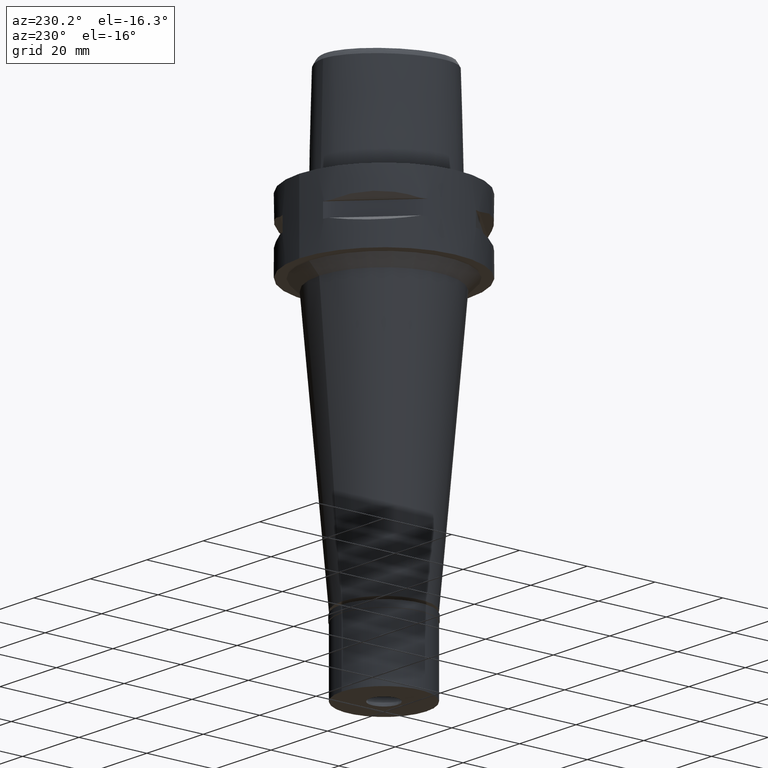
[diagram: clean part render]
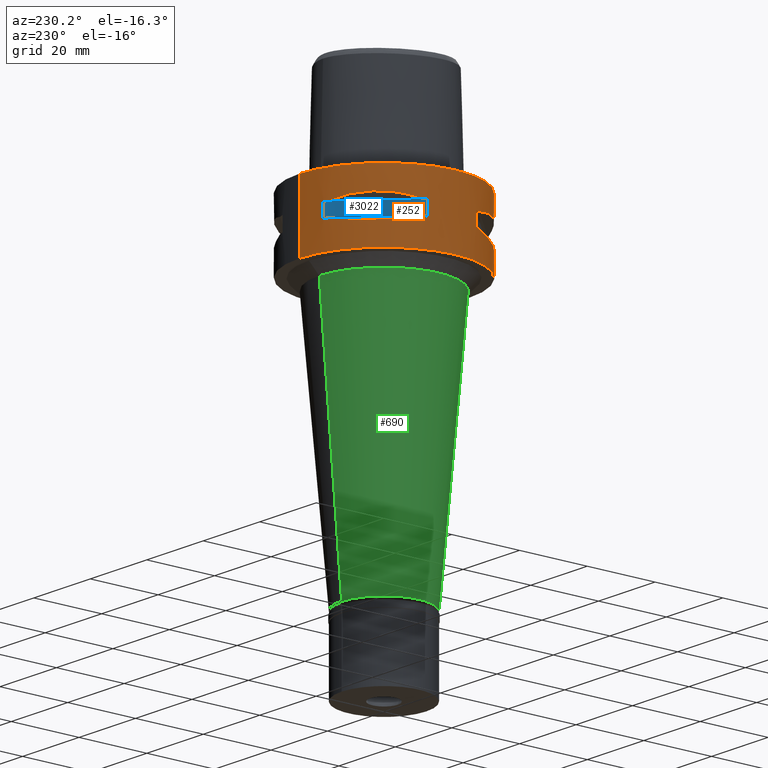
[diagram: same view with three faces highlighted in distinct colors, each labeled with its STEP entity id]
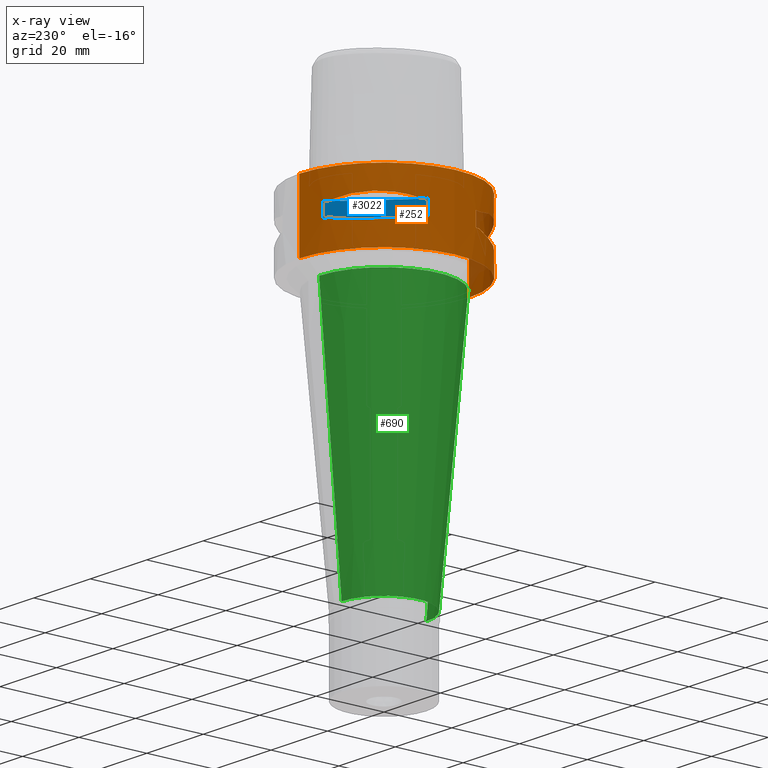
[diagram: x-ray of the same camera — body ghosted, the three highlighted faces saturated]
A machine part, auxiliary view with three faces highlighted in distinct colors.
The next image is the same camera in x-ray (body ghosted, the three faces saturated) — at least one of them is partly hidden behind the body in this view.
Their STEP definitions:

[orange] entity #252 — the highlighted cylindrical surface (partial cylindrical patch) has radius 25 mm, axis along (0, 0, -1).
#14 = DIRECTION ( 'NONE',  ( 0.0000000000000000000, 0.0000000000000000000, 1.000000000000000000 ) ) ;
#27 = CARTESIAN_POINT ( 'NONE',  ( -21.09754014382098930, -13.41274673326371136, -13.03250796600744721 ) ) ;
#65 = VECTOR ( 'NONE', #2749, 1000.000000000000000 ) ;
#69 = CARTESIAN_POINT ( 'NONE',  ( -20.92801700160071476, 13.67544437571354266, -13.07054629644097687 ) ) ;
#116 = AXIS2_PLACEMENT_3D ( 'NONE', #4035, #620, #1041 ) ;
#168 = EDGE_CURVE ( 'NONE', #1367, #3242, #1027, .T. ) ;
#212 = EDGE_CURVE ( 'NONE', #668, #3242, #2875, .T. ) ;
#216 = LINE ( 'NONE', #1324, #4386 ) ;
#226 = AXIS2_PLACEMENT_3D ( 'NONE', #469, #4298, #1666 ) ;
#229 = DIRECTION ( 'NONE',  ( 0.0000000000000000000, 0.0000000000000000000, -1.000000000000000000 ) ) ;
#249 = VERTEX_POINT ( 'NONE', #3720 ) ;
#252 = ADVANCED_FACE ( 'NONE', ( #303, #686, #1104 ), #2208, .T. ) ;
#278 = ORIENTED_EDGE ( 'NONE', *, *, #4840, .T. ) ;
#293 = CIRCLE ( 'NONE', #4848, 25.00000000000001066 ) ;
#303 = FACE_OUTER_BOUND ( 'NONE', #1824, .T. ) ;
#304 = VERTEX_POINT ( 'NONE', #331 ) ;
#307 = CARTESIAN_POINT ( 'NONE',  ( -16.07509500017260251, -19.18226349640280048, -13.33749867751863327 ) ) ;
#326 = CARTESIAN_POINT ( 'NONE',  ( -13.53433973752455621, 21.01958685664031989, -13.05032380590174235 ) ) ;
#331 = CARTESIAN_POINT ( 'NONE',  ( -23.45715880140000209, -8.646484890751999330, -7.949999999998999201 ) ) ;
#334 = CARTESIAN_POINT ( 'NONE',  ( -13.90573822667720982, -20.77616787493829875, -13.10257122103289262 ) ) ;
#345 = CARTESIAN_POINT ( 'NONE',  ( -22.00752022560863352, 11.99636231257077057, -7.175618606723547899 ) ) ;
#351 = CARTESIAN_POINT ( 'NONE',  ( -18.30096971346383938, 17.05439749819285566, -13.37751056790111903 ) ) ;
#357 = CARTESIAN_POINT ( 'NONE',  ( -13.60713573003076249, -20.97251445226584110, -13.06082541678113174 ) ) ;
#397 = CARTESIAN_POINT ( 'NONE',  ( -16.42437865147239506, 18.93096040785500733, -6.622505547239580181 ) ) ;
#419 = CARTESIAN_POINT ( 'NONE',  ( 0.0000000000000000000, 1.294329202019000047E-14, -7.950000000000000178 ) ) ;
#430 = CARTESIAN_POINT ( 'NONE',  ( -21.99328990738197120, 12.03062603426555199, -12.83394786308387481 ) ) ;
#444 = EDGE_CURVE ( 'NONE', #304, #925, #3332, .T. ) ;
#448 = CARTESIAN_POINT ( 'NONE',  ( -23.45715880140000209, 8.646484890751999330, -7.949999999998999201 ) ) ;
#458 = CARTESIAN_POINT ( 'NONE',  ( -23.95277699797999915, 7.159921374235000080, -12.05000000000000071 ) ) ;
#469 = CARTESIAN_POINT ( 'NONE',  ( 0.0000000000000000000, 1.294329202019000047E-14, -12.05000000000000071 ) ) ;
#479 = CARTESIAN_POINT ( 'NONE',  ( -20.97251445226615019, 13.60713573002994181, -13.06082541678091324 ) ) ;
#491 = AXIS2_PLACEMENT_3D ( 'NONE', #2581, #2633, #3309 ) ;
#501 = ORIENTED_EDGE ( 'NONE', *, *, #4190, .F. ) ;
#514 = VERTEX_POINT ( 'NONE', #458 ) ;
#528 = AXIS2_PLACEMENT_3D ( 'NONE', #4135, #2223, #4843 ) ;
#566 = EDGE_CURVE ( 'NONE', #3354, #2866, #3715, .T. ) ;
#620 = DIRECTION ( 'NONE',  ( 0.0000000000000000000, 0.0000000000000000000, 1.000000000000000000 ) ) ;
#663 = ORIENTED_EDGE ( 'NONE', *, *, #168, .F. ) ;
#668 = VERTEX_POINT ( 'NONE', #992 ) ;
#680 = CARTESIAN_POINT ( 'NONE',  ( 0.0000000000000000000, -25.00000000000000000, 0.0000000000000000000 ) ) ;
#686 = FACE_BOUND ( 'NONE', #2010, .T. ) ;
#688 = CARTESIAN_POINT ( 'NONE',  ( -17.05439749816580886, -18.30096971348830692, -13.37751056790007809 ) ) ;
#714 = CARTESIAN_POINT ( 'NONE',  ( -20.02826730454556170, -15.06560254766883666, -13.27075471794798744 ) ) ;
#734 = CARTESIAN_POINT ( 'NONE',  ( -10.78455809746692928, 22.58788056561475344, -12.56798337783328634 ) ) ;
#752 = CARTESIAN_POINT ( 'NONE',  ( -23.95277699797999915, -7.159921374230999724, -12.05000000000000071 ) ) ;
#759 = CARTESIAN_POINT ( 'NONE',  ( -21.01958685664054372, -13.53433973752400377, -13.05032380590162511 ) ) ;
#774 = CARTESIAN_POINT ( 'NONE',  ( -20.77616787492827655, 13.90573822668830140, -13.10257122103331362 ) ) ;
#791 = CARTESIAN_POINT ( 'NONE',  ( -22.82438450745432235, -10.36314631860613389, -7.507504930525400688 ) ) ;
#821 = CARTESIAN_POINT ( 'NONE',  ( -15.02693924553806504, 20.06077645870042403, -6.733132781285452673 ) ) ;
#842 = CARTESIAN_POINT ( 'NONE',  ( 0.0000000000000000000, 1.294329202019000047E-14, -12.05000000000000071 ) ) ;
#845 = VERTEX_POINT ( 'NONE', #1477 ) ;
#846 = ORIENTED_EDGE ( 'NONE', *, *, #3353, .F. ) ;
#888 = CARTESIAN_POINT ( 'NONE',  ( -7.159921374235000080, -23.95277699797999915, -12.05000000000000071 ) ) ;
#894 = DIRECTION ( 'NONE',  ( 0.0000000000000000000, 0.0000000000000000000, 1.000000000000000000 ) ) ;
#914 = VERTEX_POINT ( 'NONE', #987 ) ;
#925 = VERTEX_POINT ( 'NONE', #1043 ) ;
#987 = CARTESIAN_POINT ( 'NONE',  ( 0.0000000000000000000, 25.00000000000000000, 0.0000000000000000000 ) ) ;
#992 = CARTESIAN_POINT ( 'NONE',  ( -23.45715880140000209, -8.646484890756999775, -12.05000000000000071 ) ) ;
#1027 = LINE ( 'NONE', #4522, #2485 ) ;
#1028 = VERTEX_POINT ( 'NONE', #3349 ) ;
#1041 = DIRECTION ( 'NONE',  ( -0.3458593956303108730, -0.9382863520558295534, 0.0000000000000000000 ) ) ;
#1043 = CARTESIAN_POINT ( 'NONE',  ( -8.646484890751999330, -23.45715880140000209, -7.949999999998999201 ) ) ;
#1060 = VERTEX_POINT ( 'NONE', #1554 ) ;
#1081 = CARTESIAN_POINT ( 'NONE',  ( -14.85488513037629943, -20.11654071403241417, -13.22076716108376360 ) ) ;
#1089 = ORIENTED_EDGE ( 'NONE', *, *, #1784, .T. ) ;
#1104 = FACE_BOUND ( 'NONE', #3422, .T. ) ;
#1124 = EDGE_CURVE ( 'NONE', #4072, #2818, #3700, .T. ) ;
#1132 = CARTESIAN_POINT ( 'NONE',  ( -18.92421359266165126, -16.43106916201666934, -13.37747608848409264 ) ) ;
#1155 = CARTESIAN_POINT ( 'NONE',  ( -21.82791133048418786, -12.20403021317722292, -12.83722430138600323 ) ) ;
#1161 = AXIS2_PLACEMENT_3D ( 'NONE', #842, #1219, #2742 ) ;
#1205 = CARTESIAN_POINT ( 'NONE',  ( -18.93096040781556511, -16.42437865151180176, -6.622505547253060953 ) ) ;
#1211 = EDGE_CURVE ( 'NONE', #514, #2942, #2773, .T. ) ;
#1219 = DIRECTION ( 'NONE',  ( 0.0000000000000000000, 0.0000000000000000000, -1.000000000000000000 ) ) ;
#1226 = CARTESIAN_POINT ( 'NONE',  ( -23.95277699797999915, 7.159921374230999724, -12.05000000000000071 ) ) ;
#1252 = CIRCLE ( 'NONE', #1898, 24.99999999999999645 ) ;
#1259 = CARTESIAN_POINT ( 'NONE',  ( -23.95277699797999915, 7.159921374230999724, -7.950000000000000178 ) ) ;
#1261 = EDGE_CURVE ( 'NONE', #914, #1060, #3770, .T. ) ;
#1297 = EDGE_CURVE ( 'NONE', #1367, #304, #3651, .T. ) ;
#1317 = ORIENTED_EDGE ( 'NONE', *, *, #1124, .T. ) ;
#1321 = AXIS2_PLACEMENT_3D ( 'NONE', #1753, #1829, #4040 ) ;
#1324 = CARTESIAN_POINT ( 'NONE',  ( 0.0000000000000000000, -25.00000000000000000, 0.0000000000000000000 ) ) ;
#1348 = AXIS2_PLACEMENT_3D ( 'NONE', #2835, #894, #2400 ) ;
#1354 = CIRCLE ( 'NONE', #226, 25.00000000000001066 ) ;
#1367 = VERTEX_POINT ( 'NONE', #2125 ) ;
#1376 = CARTESIAN_POINT ( 'NONE',  ( -7.159921374230999724, 23.95277699797999915, -7.950000000000000178 ) ) ;
#1420 = ORIENTED_EDGE ( 'NONE', *, *, #1211, .T. ) ;
#1457 = DIRECTION ( 'NONE',  ( 0.0000000000000000000, 0.0000000000000000000, -1.000000000000000000 ) ) ;
#1477 = CARTESIAN_POINT ( 'NONE',  ( -7.159921374230999724, -23.95277699797999915, -7.950000000000000178 ) ) ;
#1508 = CARTESIAN_POINT ( 'NONE',  ( -13.48572973711170953, 21.05082155772122832, -13.04323036965318039 ) ) ;
#1514 = CARTESIAN_POINT ( 'NONE',  ( 0.0000000000000000000, 1.294329202019000047E-14, 5.689999999999999503 ) ) ;
#1536 = CARTESIAN_POINT ( 'NONE',  ( -12.20403021318853476, 21.82791133048002763, -12.83722430138890225 ) ) ;
#1554 = CARTESIAN_POINT ( 'NONE',  ( 0.0000000000000000000, 25.00000000000000000, -20.00000000000000000 ) ) ;
#1561 = CARTESIAN_POINT ( 'NONE',  ( -16.43106916206558665, 18.92421359260760383, -13.37747608848198411 ) ) ;
#1580 = CARTESIAN_POINT ( 'NONE',  ( -23.45715880140000209, 8.646484890751999330, -7.949999999998999201 ) ) ;
#1585 = CARTESIAN_POINT ( 'NONE',  ( -22.81626994450270374, 10.38516041961251268, -12.49816953212508608 ) ) ;
#1611 = CARTESIAN_POINT ( 'NONE',  ( -20.95817024473767987, 13.62920640916783555, -13.06397973560677883 ) ) ;
#1617 = CARTESIAN_POINT ( 'NONE',  ( -16.42437865151179821, -18.93096040781555445, -6.622496303226941272 ) ) ;
#1631 = ORIENTED_EDGE ( 'NONE', *, *, #212, .T. ) ;
#1650 = CIRCLE ( 'NONE', #116, 25.00000000000001066 ) ;
#1663 = VECTOR ( 'NONE', #2318, 1000.000000000000000 ) ;
#1666 = DIRECTION ( 'NONE',  ( -0.3458593956303108730, 0.9382863520558295534, 0.0000000000000000000 ) ) ;
#1753 = CARTESIAN_POINT ( 'NONE',  ( 0.0000000000000000000, 1.294329202019000047E-14, -7.950000000000000178 ) ) ;
#1780 = DIRECTION ( 'NONE',  ( 0.0000000000000000000, 0.0000000000000000000, -1.000000000000000000 ) ) ;
#1784 = EDGE_CURVE ( 'NONE', #925, #845, #1650, .T. ) ;
#1800 = EDGE_CURVE ( 'NONE', #2170, #4265, #4216, .T. ) ;
#1824 = EDGE_LOOP ( 'NONE', ( #4879, #3443, #4077, #3016 ) ) ;
#1829 = DIRECTION ( 'NONE',  ( 0.0000000000000000000, 0.0000000000000000000, 1.000000000000000000 ) ) ;
#1845 = DIRECTION ( 'NONE',  ( 0.0000000000000000000, 0.0000000000000000000, 1.000000000000000000 ) ) ;
#1890 = CARTESIAN_POINT ( 'NONE',  ( -21.20561591939681989, -13.24197703503267753, -13.00691327926098140 ) ) ;
#1898 = AXIS2_PLACEMENT_3D ( 'NONE', #419, #1845, #3475 ) ;
#1901 = CARTESIAN_POINT ( 'NONE',  ( -11.99631184317912869, 22.00754773654352903, -7.175632472871789069 ) ) ;
#1940 = CARTESIAN_POINT ( 'NONE',  ( -13.62920640916616577, -20.95817024473919687, -13.06397973560672554 ) ) ;
#1982 = CARTESIAN_POINT ( 'NONE',  ( -7.159921374235000080, 23.95277699797999915, -7.950000000000000178 ) ) ;
#2010 = EDGE_LOOP ( 'NONE', ( #3275, #501, #1420, #846, #278, #3058, #4958, #1317 ) ) ;
#2018 = CARTESIAN_POINT ( 'NONE',  ( -20.06077645874710669, -15.02693924547572557, -6.733132781305682713 ) ) ;
#2062 = AXIS2_PLACEMENT_3D ( 'NONE', #2966, #229, #4816 ) ;
#2097 = EDGE_CURVE ( 'NONE', #3354, #4072, #1252, .T. ) ;
#2109 = DIRECTION ( 'NONE',  ( 0.0000000000000000000, 0.0000000000000000000, -1.000000000000000000 ) ) ;
#2125 = CARTESIAN_POINT ( 'NONE',  ( -23.95277699797999915, -7.159921374235000080, -7.950000000000000178 ) ) ;
#2170 = VERTEX_POINT ( 'NONE', #888 ) ;
#2208 = CYLINDRICAL_SURFACE ( 'NONE', #2411, 25.00000000000000000 ) ;
#2211 = CARTESIAN_POINT ( 'NONE',  ( -13.74471461761470792, -20.88268233906292437, -13.08031795579734791 ) ) ;
#2223 = DIRECTION ( 'NONE',  ( 0.0000000000000000000, 0.0000000000000000000, -1.000000000000000000 ) ) ;
#2255 = CARTESIAN_POINT ( 'NONE',  ( -10.36314631865473856, 22.82438450743641667, -7.507504930511912811 ) ) ;
#2260 = CARTESIAN_POINT ( 'NONE',  ( -13.41274673326554101, 21.09754014382029297, -13.03250796600789663 ) ) ;
#2288 = CARTESIAN_POINT ( 'NONE',  ( -21.05082155772163333, -13.48572973711064193, -13.04323036965292637 ) ) ;
#2318 = DIRECTION ( 'NONE',  ( 0.0000000000000000000, 0.0000000000000000000, 1.000000000000000000 ) ) ;
#2334 = VERTEX_POINT ( 'NONE', #1259 ) ;
#2400 = DIRECTION ( 'NONE',  ( 0.0000000000000000000, 1.000000000000000000, 0.0000000000000000000 ) ) ;
#2411 = AXIS2_PLACEMENT_3D ( 'NONE', #1514, #2606, #3748 ) ;
#2463 = EDGE_CURVE ( 'NONE', #668, #4265, #4344, .T. ) ;
#2485 = VECTOR ( 'NONE', #4858, 1000.000000000000000 ) ;
#2514 = EDGE_CURVE ( 'NONE', #2170, #845, #4500, .T. ) ;
#2522 = VECTOR ( 'NONE', #1457, 1000.000000000000000 ) ;
#2533 = CARTESIAN_POINT ( 'NONE',  ( -23.13678124605149833, -9.515641234297431694, -12.27403800212630891 ) ) ;
#2578 = DIRECTION ( 'NONE',  ( -0.9382863520558295534, 0.3458593956303108730, 0.0000000000000000000 ) ) ;
#2581 = CARTESIAN_POINT ( 'NONE',  ( 0.0000000000000000000, 1.294329202019000047E-14, -12.05000000000000071 ) ) ;
#2601 = CARTESIAN_POINT ( 'NONE',  ( -12.89853354822446718, 21.41803043592210543, -12.95342092614171570 ) ) ;
#2606 = DIRECTION ( 'NONE',  ( 0.0000000000000000000, 0.0000000000000000000, -1.000000000000000000 ) ) ;
#2621 = CARTESIAN_POINT ( 'NONE',  ( -8.646484890751999330, 23.45715880140000209, -7.949999999998999201 ) ) ;
#2633 = DIRECTION ( 'NONE',  ( 0.0000000000000000000, 0.0000000000000000000, -1.000000000000000000 ) ) ;
#2672 = CARTESIAN_POINT ( 'NONE',  ( -15.06560254766712248, 20.02826730454206228, -13.27075471794584693 ) ) ;
#2676 = CARTESIAN_POINT ( 'NONE',  ( -11.99636231264437747, -22.00752022556847720, -7.175618606703325852 ) ) ;
#2742 = DIRECTION ( 'NONE',  ( -0.9581110799190402094, 0.2863968549694120291, 0.0000000000000000000 ) ) ;
#2749 = DIRECTION ( 'NONE',  ( 0.0000000000000000000, 0.0000000000000000000, 1.000000000000000000 ) ) ;
#2773 = CIRCLE ( 'NONE', #1161, 24.99999999999999645 ) ;
#2813 = EDGE_CURVE ( 'NONE', #2818, #2334, #293, .T. ) ;
#2818 = VERTEX_POINT ( 'NONE', #448 ) ;
#2835 = CARTESIAN_POINT ( 'NONE',  ( 0.0000000000000000000, 1.294329202019000047E-14, -20.00000000000000000 ) ) ;
#2866 = VERTEX_POINT ( 'NONE', #3169 ) ;
#2875 = CIRCLE ( 'NONE', #491, 25.00000000000001066 ) ;
#2885 = CARTESIAN_POINT ( 'NONE',  ( -23.45715880140000209, 8.646484890751999330, -12.05000000000000071 ) ) ;
#2942 = VERTEX_POINT ( 'NONE', #2885 ) ;
#2955 = EDGE_CURVE ( 'NONE', #3199, #914, #4225, .T. ) ;
#2960 = CARTESIAN_POINT ( 'NONE',  ( -22.58788056562029922, -10.78455809745187111, -12.56798337782941744 ) ) ;
#2966 = CARTESIAN_POINT ( 'NONE',  ( 0.0000000000000000000, 1.294329202019000047E-14, 0.0000000000000000000 ) ) ;
#2992 = CARTESIAN_POINT ( 'NONE',  ( -7.159921374230999724, -23.95277699797999915, -12.05000000000000071 ) ) ;
#3004 = CARTESIAN_POINT ( 'NONE',  ( -13.55971422200804888, 21.00321793043550755, -13.05400030967368785 ) ) ;
#3016 = ORIENTED_EDGE ( 'NONE', *, *, #1261, .T. ) ;
#3033 = CARTESIAN_POINT ( 'NONE',  ( -9.515641234306031038, 23.13678124604833286, -12.27403800212850093 ) ) ;
#3057 = ORIENTED_EDGE ( 'NONE', *, *, #2514, .F. ) ;
#3058 = ORIENTED_EDGE ( 'NONE', *, *, #566, .F. ) ;
#3067 = CARTESIAN_POINT ( 'NONE',  ( -10.38516041956038016, -22.81626994452193458, -12.49816953211165860 ) ) ;
#3105 = CARTESIAN_POINT ( 'NONE',  ( -23.45715880140000209, 8.646484890751999330, -12.05000000000000071 ) ) ;
#3107 = CARTESIAN_POINT ( 'NONE',  ( -8.646484890751999330, 23.45715880140000209, -7.949999999998999201 ) ) ;
#3111 = CARTESIAN_POINT ( 'NONE',  ( -23.45715880140000209, -8.646484890751999330, -7.949999999998999201 ) ) ;
#3169 = CARTESIAN_POINT ( 'NONE',  ( -7.159921374230999724, 23.95277699797999915, -12.05000000000000071 ) ) ;
#3172 = ORIENTED_EDGE ( 'NONE', *, *, #1800, .T. ) ;
#3199 = VERTEX_POINT ( 'NONE', #680 ) ;
#3210 = VECTOR ( 'NONE', #1780, 1000.000000000000000 ) ;
#3242 = VERTEX_POINT ( 'NONE', #752 ) ;
#3275 = ORIENTED_EDGE ( 'NONE', *, *, #2813, .T. ) ;
#3298 = ORIENTED_EDGE ( 'NONE', *, *, #444, .T. ) ;
#3309 = DIRECTION ( 'NONE',  ( -0.9382863520558295534, -0.3458593956303108730, 0.0000000000000000000 ) ) ;
#3332 = B_SPLINE_CURVE_WITH_KNOTS ( 'NONE', 3,
 ( #3111, #791, #4640, #2018, #1205, #1617, #3929, #2676, #4664, #4219 ),
 .UNSPECIFIED., .F., .F.,
 ( 4, 2, 2, 2, 4 ),
 ( 0.0000000000000000000, 0.2499999999999998335, 0.4999999999999996669, 0.7499999999999997780, 1.000000000000000000 ),
 .UNSPECIFIED. ) ;
#3349 = CARTESIAN_POINT ( 'NONE',  ( 0.0000000000000000000, -25.00000000000000000, -20.00000000000000000 ) ) ;
#3353 = EDGE_CURVE ( 'NONE', #249, #2942, #3636, .T. ) ;
#3354 = VERTEX_POINT ( 'NONE', #1982 ) ;
#3410 = CARTESIAN_POINT ( 'NONE',  ( -19.18226349636000805, 16.07509500021993887, -13.33749867752047358 ) ) ;
#3422 = EDGE_LOOP ( 'NONE', ( #1089, #3057, #3172, #3525, #1631, #663, #3710, #3298 ) ) ;
#3443 = ORIENTED_EDGE ( 'NONE', *, *, #3568, .F. ) ;
#3458 = CARTESIAN_POINT ( 'NONE',  ( -18.93096040785499667, 16.42437865147239506, -6.622496303240420268 ) ) ;
#3464 = CARTESIAN_POINT ( 'NONE',  ( -20.88268233905774807, 13.74471461762043312, -13.08031795579756640 ) ) ;
#3475 = DIRECTION ( 'NONE',  ( -0.2863968549694120291, 0.9581110799190402094, 0.0000000000000000000 ) ) ;
#3524 = CIRCLE ( 'NONE', #1348, 25.00000000000000000 ) ;
#3525 = ORIENTED_EDGE ( 'NONE', *, *, #2463, .F. ) ;
#3568 = EDGE_CURVE ( 'NONE', #3199, #1028, #216, .T. ) ;
#3636 = B_SPLINE_CURVE_WITH_KNOTS ( 'NONE', 3,
 ( #4170, #3033, #734, #1536, #2601, #4141, #2260, #1508, #326, #3004, #2672, #1561, #351, #3410, #4213, #4542, #774, #3464, #69, #1611, #479, #430, #1585, #3105 ),
 .UNSPECIFIED., .F., .F.,
 ( 4, 1, 1, 1, 1, 1, 2, 2, 2, 1, 1, 1, 1, 1, 2, 2, 4 ),
 ( 0.0000000000000000000, 0.1250000000000042744, 0.1875000000000064115, 0.2187500000000075218, 0.2343750000000079659, 0.2421875000000081601, 0.2460937500000082989, 0.2500000000000084377, 0.5000000000000065503, 0.6250000000000055511, 0.6875000000000051070, 0.7187500000000047740, 0.7343750000000045519, 0.7421875000000042188, 0.7460937500000041078, 0.7500000000000039968, 1.000000000000000000 ),
 .UNSPECIFIED. ) ;
#3651 = CIRCLE ( 'NONE', #1321, 24.99999999999999645 ) ;
#3700 = B_SPLINE_CURVE_WITH_KNOTS ( 'NONE', 3,
 ( #2621, #2255, #1901, #821, #397, #3458, #3793, #345, #4951, #1580 ),
 .UNSPECIFIED., .F., .F.,
 ( 4, 2, 2, 2, 4 ),
 ( 0.0000000000000000000, 0.2500000000000000000, 0.5000000000000000000, 0.7500000000000000000, 1.000000000000000000 ),
 .UNSPECIFIED. ) ;
#3710 = ORIENTED_EDGE ( 'NONE', *, *, #1297, .T. ) ;
#3715 = LINE ( 'NONE', #1376, #3210 ) ;
#3720 = CARTESIAN_POINT ( 'NONE',  ( -8.646484890756999775, 23.45715880140000209, -12.05000000000000071 ) ) ;
#3748 = DIRECTION ( 'NONE',  ( 0.0000000000000000000, -1.000000000000000000, 0.0000000000000000000 ) ) ;
#3753 = CARTESIAN_POINT ( 'NONE',  ( -21.41803043592453548, -12.89853354821786446, -12.95342092614003171 ) ) ;
#3770 = LINE ( 'NONE', #4515, #2522 ) ;
#3793 = CARTESIAN_POINT ( 'NONE',  ( -20.06074199769975763, 15.02698525043419231, -6.733118915137215943 ) ) ;
#3807 = CARTESIAN_POINT ( 'NONE',  ( -14.22535762327708397, -20.56020460723788901, -13.14488865845220289 ) ) ;
#3855 = CARTESIAN_POINT ( 'NONE',  ( -8.646484890751999330, -23.45715880140000209, -12.05000000000000071 ) ) ;
#3925 = LINE ( 'NONE', #1226, #65 ) ;
#3929 = CARTESIAN_POINT ( 'NONE',  ( -15.02698525050127465, -20.06074199764947963, -6.733118915116994785 ) ) ;
#4035 = CARTESIAN_POINT ( 'NONE',  ( 0.0000000000000000000, 1.294329202019000047E-14, -7.950000000000000178 ) ) ;
#4040 = DIRECTION ( 'NONE',  ( -0.9581110799190402094, -0.2863968549694120291, 0.0000000000000000000 ) ) ;
#4048 = CARTESIAN_POINT ( 'NONE',  ( -23.45715880140000209, -8.646484890756999775, -12.05000000000000071 ) ) ;
#4072 = VERTEX_POINT ( 'NONE', #3107 ) ;
#4077 = ORIENTED_EDGE ( 'NONE', *, *, #2955, .T. ) ;
#4125 = CARTESIAN_POINT ( 'NONE',  ( -21.00321793043546847, -13.55971422200801157, -13.05400030967367364 ) ) ;
#4135 = CARTESIAN_POINT ( 'NONE',  ( 0.0000000000000000000, 1.294329202019000047E-14, -12.05000000000000071 ) ) ;
#4141 = CARTESIAN_POINT ( 'NONE',  ( -13.24197703503622137, 21.20561591939551249, -13.00691327926188201 ) ) ;
#4170 = CARTESIAN_POINT ( 'NONE',  ( -8.646484890756999775, 23.45715880140000209, -12.05000000000000071 ) ) ;
#4190 = EDGE_CURVE ( 'NONE', #514, #2334, #3925, .T. ) ;
#4213 = CARTESIAN_POINT ( 'NONE',  ( -20.11654071400031540, 14.85488513041178749, -13.22076716108514027 ) ) ;
#4216 = CIRCLE ( 'NONE', #528, 24.99999999999999645 ) ;
#4219 = CARTESIAN_POINT ( 'NONE',  ( -8.646484890751999330, -23.45715880140000209, -7.949999999998999201 ) ) ;
#4221 = CARTESIAN_POINT ( 'NONE',  ( -12.03062603421342125, -21.99328990740118428, -12.83394786307044555 ) ) ;
#4225 = CIRCLE ( 'NONE', #2062, 25.00000000000000000 ) ;
#4265 = VERTEX_POINT ( 'NONE', #4409 ) ;
#4298 = DIRECTION ( 'NONE',  ( 0.0000000000000000000, 0.0000000000000000000, -1.000000000000000000 ) ) ;
#4344 = B_SPLINE_CURVE_WITH_KNOTS ( 'NONE', 3,
 ( #4048, #2533, #2960, #1155, #3753, #1890, #27, #2288, #759, #4125, #714, #1132, #688, #307, #1081, #3807, #334, #2211, #4594, #1940, #357, #4221, #3067, #3855 ),
 .UNSPECIFIED., .F., .F.,
 ( 4, 1, 1, 1, 1, 1, 2, 2, 2, 1, 1, 1, 1, 1, 2, 2, 4 ),
 ( 0.0000000000000000000, 0.1249999999999980294, 0.1874999999999968636, 0.2187499999999962530, 0.2343749999999959754, 0.2421874999999957812, 0.2460937499999955869, 0.2499999999999953926, 0.5000000000000005551, 0.6250000000000031086, 0.6875000000000044409, 0.7187500000000051070, 0.7343750000000054401, 0.7421875000000055511, 0.7460937500000055511, 0.7500000000000055511, 1.000000000000000000 ),
 .UNSPECIFIED. ) ;
#4386 = VECTOR ( 'NONE', #2109, 1000.000000000000000 ) ;
#4409 = CARTESIAN_POINT ( 'NONE',  ( -8.646484890751999330, -23.45715880140000209, -12.05000000000000071 ) ) ;
#4500 = LINE ( 'NONE', #2992, #1663 ) ;
#4515 = CARTESIAN_POINT ( 'NONE',  ( 0.0000000000000000000, 25.00000000000000000, 0.0000000000000000000 ) ) ;
#4522 = CARTESIAN_POINT ( 'NONE',  ( -23.95277699797999915, -7.159921374230999724, -7.950000000000000178 ) ) ;
#4542 = CARTESIAN_POINT ( 'NONE',  ( -20.56020460721917331, 14.22535762329778386, -13.14488865845300047 ) ) ;
#4594 = CARTESIAN_POINT ( 'NONE',  ( -13.67544437571023153, -20.92801700160370970, -13.07054629644085786 ) ) ;
#4619 = EDGE_CURVE ( 'NONE', #1060, #1028, #3524, .T. ) ;
#4640 = CARTESIAN_POINT ( 'NONE',  ( -22.00754773658078634, -11.99631184311072651, -7.175632472892017333 ) ) ;
#4664 = CARTESIAN_POINT ( 'NONE',  ( -10.36318218122985790, -22.82437128822188299, -7.507495686399604296 ) ) ;
#4816 = DIRECTION ( 'NONE',  ( 0.0000000000000000000, -1.000000000000000000, 0.0000000000000000000 ) ) ;
#4840 = EDGE_CURVE ( 'NONE', #249, #2866, #1354, .T. ) ;
#4843 = DIRECTION ( 'NONE',  ( -0.2863968549694120291, -0.9581110799190402094, 0.0000000000000000000 ) ) ;
#4848 = AXIS2_PLACEMENT_3D ( 'NONE', #4886, #14, #2578 ) ;
#4858 = DIRECTION ( 'NONE',  ( 0.0000000000000000000, 0.0000000000000000000, -1.000000000000000000 ) ) ;
#4879 = ORIENTED_EDGE ( 'NONE', *, *, #4619, .T. ) ;
#4886 = CARTESIAN_POINT ( 'NONE',  ( 0.0000000000000000000, 1.294329202019000047E-14, -7.950000000000000178 ) ) ;
#4951 = CARTESIAN_POINT ( 'NONE',  ( -22.82437128824117778, 10.36318218117757084, -7.507495686413086844 ) ) ;
#4958 = ORIENTED_EDGE ( 'NONE', *, *, #2097, .T. ) ;

[blue] entity #3022 — the highlighted planar face has unit normal (0.7071, -0.7071, 0).
#20 = LINE ( 'NONE', #1830, #384 ) ;
#65 = VECTOR ( 'NONE', #2749, 1000.000000000000000 ) ;
#221 = ORIENTED_EDGE ( 'NONE', *, *, #2258, .F. ) ;
#295 = DIRECTION ( 'NONE',  ( -0.7071067811865474617, -0.7071067811865474617, 0.0000000000000000000 ) ) ;
#384 = VECTOR ( 'NONE', #295, 1000.000000000000114 ) ;
#458 = CARTESIAN_POINT ( 'NONE',  ( -23.95277699797999915, 7.159921374235000080, -12.05000000000000071 ) ) ;
#514 = VERTEX_POINT ( 'NONE', #458 ) ;
#566 = EDGE_CURVE ( 'NONE', #3354, #2866, #3715, .T. ) ;
#670 = DIRECTION ( 'NONE',  ( 0.7071067811865475727, -0.7071067811865475727, 0.0000000000000000000 ) ) ;
#826 = ORIENTED_EDGE ( 'NONE', *, *, #4190, .T. ) ;
#1171 = VECTOR ( 'NONE', #1692, 1000.000000000000114 ) ;
#1226 = CARTESIAN_POINT ( 'NONE',  ( -23.95277699797999915, 7.159921374230999724, -12.05000000000000071 ) ) ;
#1259 = CARTESIAN_POINT ( 'NONE',  ( -23.95277699797999915, 7.159921374230999724, -7.950000000000000178 ) ) ;
#1376 = CARTESIAN_POINT ( 'NONE',  ( -7.159921374230999724, 23.95277699797999915, -7.950000000000000178 ) ) ;
#1443 = FACE_OUTER_BOUND ( 'NONE', #4746, .T. ) ;
#1692 = DIRECTION ( 'NONE',  ( -0.7071067811865474617, -0.7071067811865474617, 0.0000000000000000000 ) ) ;
#1768 = DIRECTION ( 'NONE',  ( 0.0000000000000000000, 0.0000000000000000000, -1.000000000000000000 ) ) ;
#1780 = DIRECTION ( 'NONE',  ( 0.0000000000000000000, 0.0000000000000000000, -1.000000000000000000 ) ) ;
#1830 = CARTESIAN_POINT ( 'NONE',  ( -7.159921374230999724, 23.95277699797999915, -12.05000000000000071 ) ) ;
#1982 = CARTESIAN_POINT ( 'NONE',  ( -7.159921374235000080, 23.95277699797999915, -7.950000000000000178 ) ) ;
#2258 = EDGE_CURVE ( 'NONE', #3354, #2334, #3886, .T. ) ;
#2334 = VERTEX_POINT ( 'NONE', #1259 ) ;
#2366 = CARTESIAN_POINT ( 'NONE',  ( -7.159921374230999724, 23.95277699797999915, -7.950000000000000178 ) ) ;
#2383 = AXIS2_PLACEMENT_3D ( 'NONE', #2536, #670, #1768 ) ;
#2536 = CARTESIAN_POINT ( 'NONE',  ( -26.16295090389999700, 4.949747468305999654, -7.950000000000000178 ) ) ;
#2749 = DIRECTION ( 'NONE',  ( 0.0000000000000000000, 0.0000000000000000000, 1.000000000000000000 ) ) ;
#2866 = VERTEX_POINT ( 'NONE', #3169 ) ;
#3022 = ADVANCED_FACE ( 'NONE', ( #1443 ), #4106, .F. ) ;
#3169 = CARTESIAN_POINT ( 'NONE',  ( -7.159921374230999724, 23.95277699797999915, -12.05000000000000071 ) ) ;
#3210 = VECTOR ( 'NONE', #1780, 1000.000000000000000 ) ;
#3252 = EDGE_CURVE ( 'NONE', #2866, #514, #20, .T. ) ;
#3354 = VERTEX_POINT ( 'NONE', #1982 ) ;
#3374 = ORIENTED_EDGE ( 'NONE', *, *, #3252, .T. ) ;
#3454 = ORIENTED_EDGE ( 'NONE', *, *, #566, .T. ) ;
#3715 = LINE ( 'NONE', #1376, #3210 ) ;
#3886 = LINE ( 'NONE', #2366, #1171 ) ;
#3925 = LINE ( 'NONE', #1226, #65 ) ;
#4106 = PLANE ( 'NONE',  #2383 ) ;
#4190 = EDGE_CURVE ( 'NONE', #514, #2334, #3925, .T. ) ;
#4746 = EDGE_LOOP ( 'NONE', ( #221, #3454, #3374, #826 ) ) ;

[green] entity #690 — the highlighted conical surface has half-angle 5 deg.
#114 = CARTESIAN_POINT ( 'NONE',  ( 0.0000000000000000000, -19.12289182891000294, -23.00000000000000000 ) ) ;
#225 = EDGE_CURVE ( 'NONE', #4128, #2542, #3284, .T. ) ;
#457 = EDGE_CURVE ( 'NONE', #3805, #3162, #2167, .T. ) ;
#481 = DIRECTION ( 'NONE',  ( 0.0000000000000000000, -0.08715574274763414342, -0.9961946980917475436 ) ) ;
#495 = AXIS2_PLACEMENT_3D ( 'NONE', #4172, #1459, #3690 ) ;
#661 = DIRECTION ( 'NONE',  ( 0.0000000000000000000, 1.000000000000000000, 0.0000000000000000000 ) ) ;
#690 = ADVANCED_FACE ( 'NONE', ( #4543 ), #1455, .T. ) ;
#757 = CARTESIAN_POINT ( 'NONE',  ( 0.0000000000000000000, 0.0000000000000000000, -23.00000000000000000 ) ) ;
#760 = EDGE_CURVE ( 'NONE', #3162, #4128, #1654, .T. ) ;
#1213 = ORIENTED_EDGE ( 'NONE', *, *, #457, .T. ) ;
#1289 = VECTOR ( 'NONE', #481, 1000.000000000000114 ) ;
#1455 = CONICAL_SURFACE ( 'NONE', #495, 15.81144591445999836, 0.08726646259969973729 ) ;
#1459 = DIRECTION ( 'NONE',  ( 0.0000000000000000000, 0.0000000000000000000, 1.000000000000000000 ) ) ;
#1481 = ORIENTED_EDGE ( 'NONE', *, *, #3998, .F. ) ;
#1588 = LINE ( 'NONE', #114, #2315 ) ;
#1654 = LINE ( 'NONE', #3176, #1289 ) ;
#2167 = CIRCLE ( 'NONE', #2967, 19.12289182891000294 ) ;
#2315 = VECTOR ( 'NONE', #2381, 1000.000000000000114 ) ;
#2381 = DIRECTION ( 'NONE',  ( 0.0000000000000000000, 0.08715574274763414342, -0.9961946980917475436 ) ) ;
#2483 = AXIS2_PLACEMENT_3D ( 'NONE', #4549, #4099, #661 ) ;
#2542 = VERTEX_POINT ( 'NONE', #4894 ) ;
#2575 = CARTESIAN_POINT ( 'NONE',  ( 0.0000000000000000000, 19.12289182891000294, -23.00000000000000000 ) ) ;
#2967 = AXIS2_PLACEMENT_3D ( 'NONE', #757, #4198, #4572 ) ;
#3079 = EDGE_LOOP ( 'NONE', ( #3463, #1481, #1213, #3368 ) ) ;
#3162 = VERTEX_POINT ( 'NONE', #2575 ) ;
#3176 = CARTESIAN_POINT ( 'NONE',  ( 0.0000000000000000000, 19.12289182891000294, -23.00000000000000000 ) ) ;
#3284 = CIRCLE ( 'NONE', #2483, 12.50000000000000000 ) ;
#3368 = ORIENTED_EDGE ( 'NONE', *, *, #760, .T. ) ;
#3412 = CARTESIAN_POINT ( 'NONE',  ( 0.0000000000000000000, -19.12289182891000294, -23.00000000000000000 ) ) ;
#3463 = ORIENTED_EDGE ( 'NONE', *, *, #225, .T. ) ;
#3690 = DIRECTION ( 'NONE',  ( 0.0000000000000000000, 1.000000000000000000, 0.0000000000000000000 ) ) ;
#3805 = VERTEX_POINT ( 'NONE', #3412 ) ;
#3998 = EDGE_CURVE ( 'NONE', #3805, #2542, #1588, .T. ) ;
#4099 = DIRECTION ( 'NONE',  ( 0.0000000000000000000, 0.0000000000000000000, 1.000000000000000000 ) ) ;
#4128 = VERTEX_POINT ( 'NONE', #4662 ) ;
#4172 = CARTESIAN_POINT ( 'NONE',  ( 0.0000000000000000000, 0.0000000000000000000, -60.85000000000000142 ) ) ;
#4198 = DIRECTION ( 'NONE',  ( 0.0000000000000000000, 0.0000000000000000000, -1.000000000000000000 ) ) ;
#4543 = FACE_OUTER_BOUND ( 'NONE', #3079, .T. ) ;
#4549 = CARTESIAN_POINT ( 'NONE',  ( 0.0000000000000000000, 0.0000000000000000000, -98.70000000000000284 ) ) ;
#4572 = DIRECTION ( 'NONE',  ( 0.0000000000000000000, -1.000000000000000000, 0.0000000000000000000 ) ) ;
#4662 = CARTESIAN_POINT ( 'NONE',  ( 0.0000000000000000000, 12.50000000000000000, -98.70000000000000284 ) ) ;
#4894 = CARTESIAN_POINT ( 'NONE',  ( 0.0000000000000000000, -12.50000000000000000, -98.70000000000000284 ) ) ;